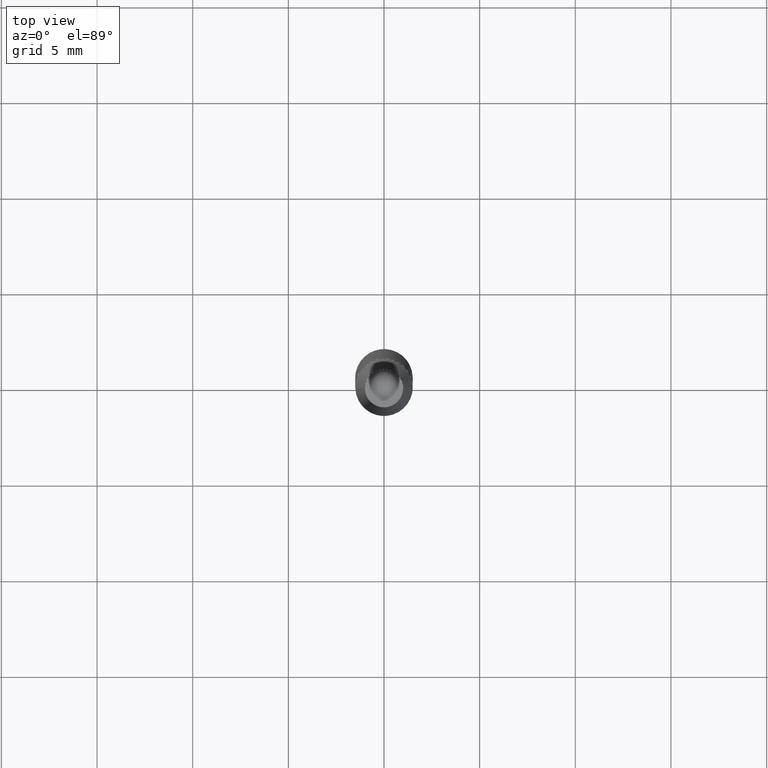
[diagram: clean part render]
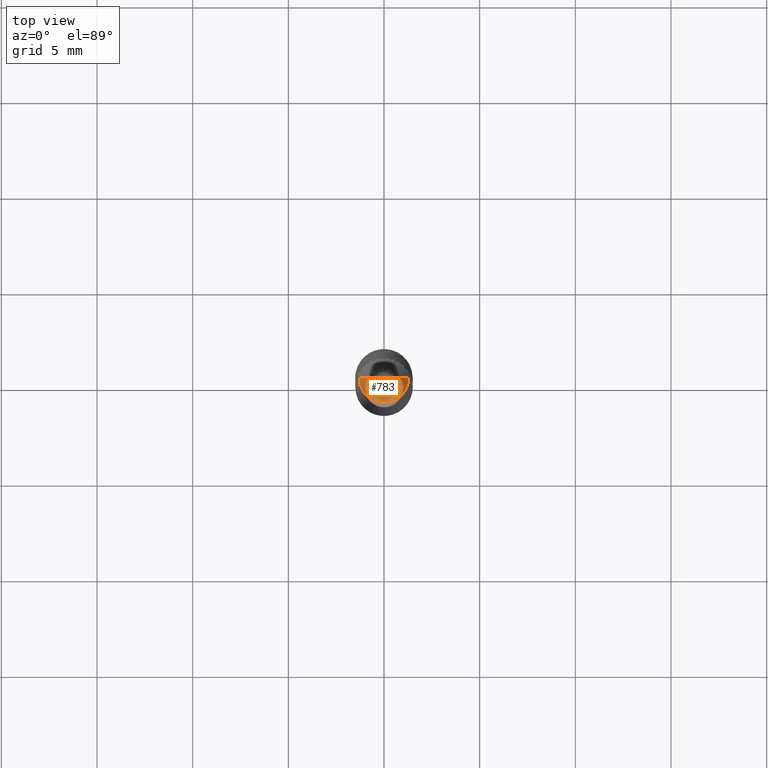
[diagram: same view with one face highlighted and labeled with its STEP entity id]
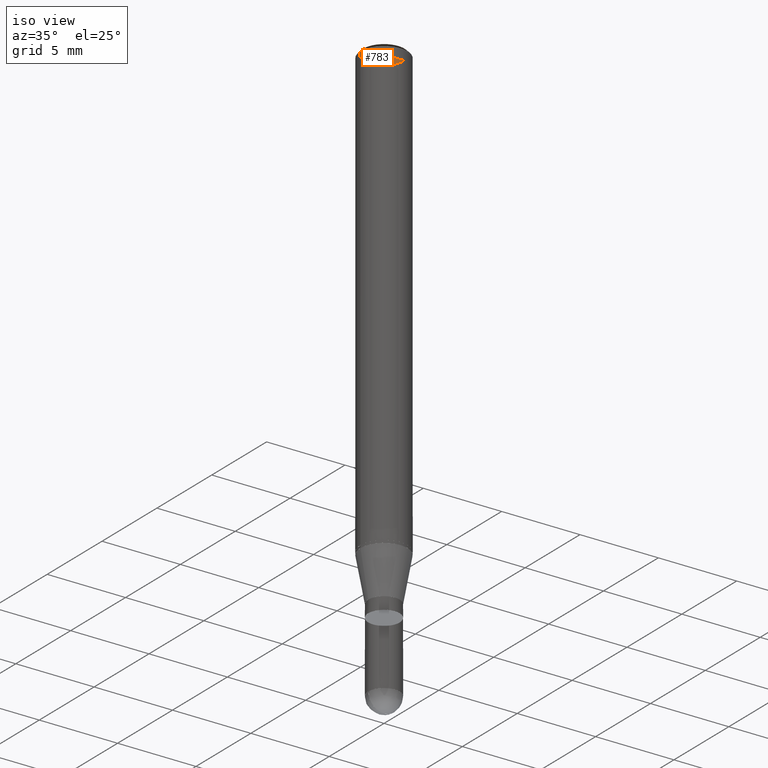
[diagram: same view with one face highlighted and labeled with its STEP entity id]
A machine part, top view. The second image highlights one B-rep face of the part: STEP entity #783.
A second angle (iso view) of the same face is appended — the face is thin or edge-on in the first view.
In plain terms, the highlighted face is a freeform B-spline surface patch.
Its self-contained STEP definition (entity closure, byte-faithful):
#386=CARTESIAN_POINT('',(1.3,0.0,28.7));
#390=CARTESIAN_POINT('',(-1.3,0.0,28.7));
#391=CARTESIAN_POINT('',(0.0,0.0,28.7));
#404=CARTESIAN_POINT('',(-1.3,-1.3,28.7));
#405=CARTESIAN_POINT('',(0.0,-1.3,28.7));
#406=CARTESIAN_POINT('',(1.3,-1.3,28.7));
#768=(
BOUNDED_SURFACE()
B_SPLINE_SURFACE(1,2,(
(#390,#404,#405,#406,#386),
(#391,#391,#391,#391,#391)
), .UNSPECIFIED.,.F.,.F.,.F.)
B_SPLINE_SURFACE_WITH_KNOTS((2,2),(3,2,3),(
0.0,1.0),(
0.0,0.5,1.0), .UNSPECIFIED.)
GEOMETRIC_REPRESENTATION_ITEM()
RATIONAL_B_SPLINE_SURFACE(((1.0,0.707106781187,1.0,0.707106781187,1.0),
(1.0,0.707106781187,1.0,0.707106781187,1.0)
))
REPRESENTATION_ITEM('')
SURFACE()
);
#769=(
BOUNDED_CURVE()
B_SPLINE_CURVE(2,(#386,#406,#405,#404,#390),.UNSPECIFIED.,.F.,.F.)
B_SPLINE_CURVE_WITH_KNOTS((3,2,3),
(0.0,0.5,1.0),.UNSPECIFIED.)
CURVE()
GEOMETRIC_REPRESENTATION_ITEM()
RATIONAL_B_SPLINE_CURVE((1.0,0.707106781187,1.0,0.707106781187,1.0))
REPRESENTATION_ITEM('')
);
#770=(
BOUNDED_CURVE()
B_SPLINE_CURVE(1,(#390,#391),.UNSPECIFIED.,.F.,.F.)
B_SPLINE_CURVE_WITH_KNOTS((2,2),
(0.0,1.0),.UNSPECIFIED.)
CURVE()
GEOMETRIC_REPRESENTATION_ITEM()
RATIONAL_B_SPLINE_CURVE((1.0,1.0))
REPRESENTATION_ITEM('')
);
#771=(
BOUNDED_CURVE()
B_SPLINE_CURVE(1,(#391,#386),.UNSPECIFIED.,.F.,.F.)
B_SPLINE_CURVE_WITH_KNOTS((2,2),
(0.0,1.0),.UNSPECIFIED.)
CURVE()
GEOMETRIC_REPRESENTATION_ITEM()
RATIONAL_B_SPLINE_CURVE((1.0,1.0))
REPRESENTATION_ITEM('')
);
#772=VERTEX_POINT('',#386);
#773=VERTEX_POINT('',#390);
#774=VERTEX_POINT('',#391);
#775=EDGE_CURVE('',#772,#773,#769,.T.);
#776=EDGE_CURVE('',#773,#774,#770,.T.);
#777=EDGE_CURVE('',#774,#772,#771,.T.);
#778=ORIENTED_EDGE('',*,*,#775,.T.);
#779=ORIENTED_EDGE('',*,*,#776,.T.);
#780=ORIENTED_EDGE('',*,*,#777,.T.);
#781=EDGE_LOOP('',(#778,#779,#780));
#782=FACE_OUTER_BOUND('',#781,.T.);
#783=ADVANCED_FACE('',(#782),#768,.T.);